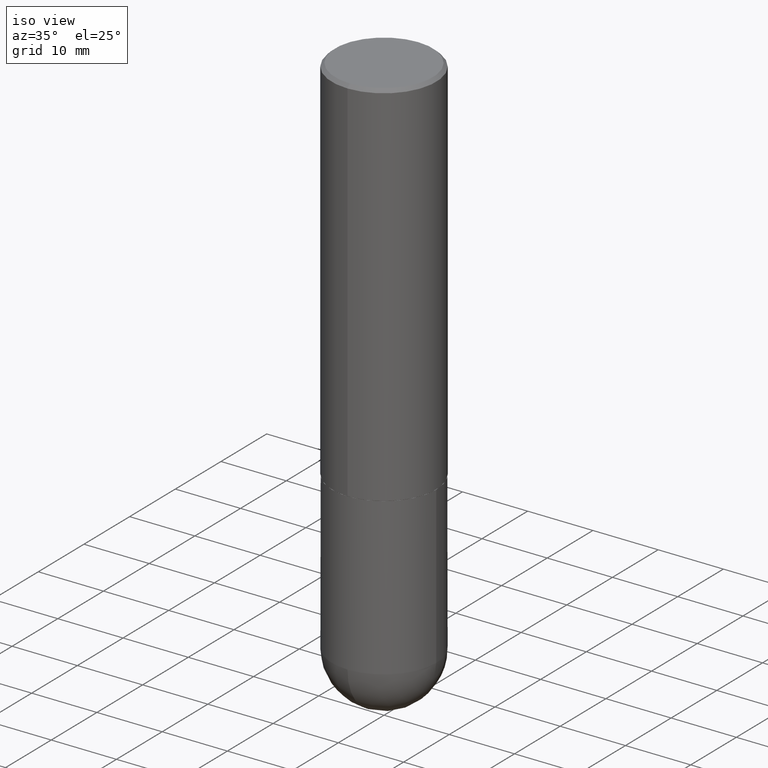
[diagram: clean part render]
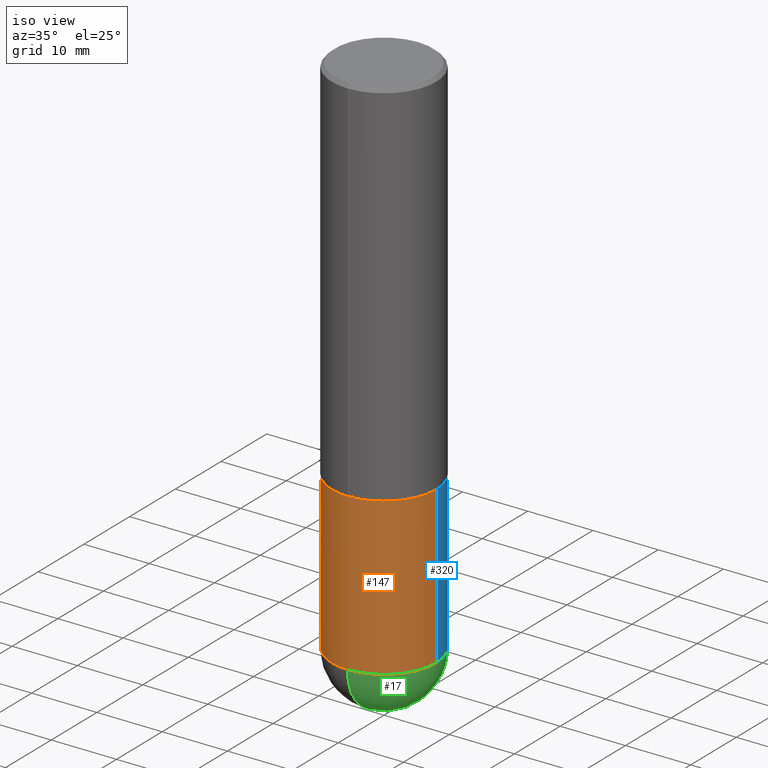
[diagram: same view with three faces highlighted in distinct colors, each labeled with its STEP entity id]
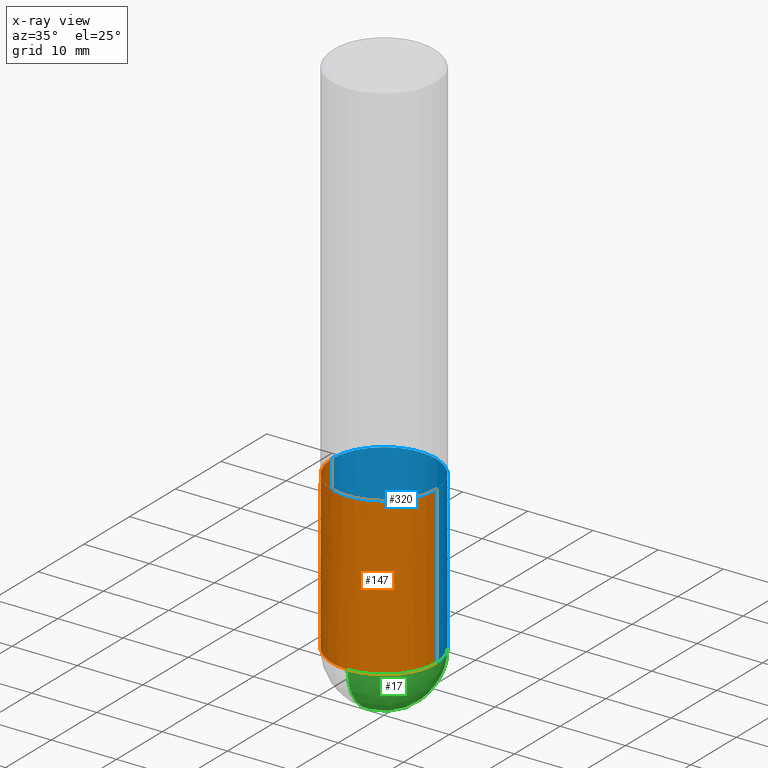
[diagram: x-ray of the same camera — body ghosted, the three highlighted faces saturated]
A machine part, iso view with three faces highlighted in distinct colors.
The next image is the same camera in x-ray (body ghosted, the three faces saturated) — at least one of them is partly hidden behind the body in this view.
Their STEP definitions:

[orange] entity #147 — the highlighted cylindrical surface (partial cylindrical patch) has radius 7.9997 mm, axis along (-0, 0, 1).
#1 = DIRECTION ( 'NONE',  ( -2.445468806185136877E-29, 3.491481338843145188E-15, 1.000000000000000000 ) ) ;
#21 = CARTESIAN_POINT ( 'NONE',  ( 7.798477749484091354E-29, -1.113415941550384898E-14, -3.188949999999999729 ) ) ;
#23 = VERTEX_POINT ( 'NONE', #142 ) ;
#34 = FACE_OUTER_BOUND ( 'NONE', #318, .T. ) ;
#42 = ORIENTED_EDGE ( 'NONE', *, *, #399, .T. ) ;
#58 = VERTEX_POINT ( 'NONE', #397 ) ;
#62 = DIRECTION ( 'NONE',  ( 1.000000000000000000, -6.982962677686263555E-15, 0.000000000000000000 ) ) ;
#66 = AXIS2_PLACEMENT_3D ( 'NONE', #21, #332, #270 ) ;
#70 = CARTESIAN_POINT ( 'NONE',  ( -0.3149500000000000077, 2.237854346276435590E-15, -1.549218606675782676E-29 ) ) ;
#71 = ORIENTED_EDGE ( 'NONE', *, *, #353, .F. ) ;
#75 = CIRCLE ( 'NONE', #309, 0.3149500000000000077 ) ;
#101 = DIRECTION ( 'NONE',  ( -2.445468806185136877E-29, 3.491481338843145188E-15, 1.000000000000000000 ) ) ;
#109 = DIRECTION ( 'NONE',  ( -2.445468806185136597E-29, 3.491481338843145583E-15, 1.000000000000000000 ) ) ;
#115 = EDGE_CURVE ( 'NONE', #345, #358, #250, .T. ) ;
#116 = CYLINDRICAL_SURFACE ( 'NONE', #294, 0.3149500000000000077 ) ;
#139 = CIRCLE ( 'NONE', #380, 0.3149500000000000077 ) ;
#141 = CARTESIAN_POINT ( 'NONE',  ( 0.3149500000000000077, -1.168398043933816632E-14, -3.188949999999999729 ) ) ;
#142 = CARTESIAN_POINT ( 'NONE',  ( -0.3149500000000000077, -7.246841997724440463E-15, -2.244099999999999540 ) ) ;
#143 = DIRECTION ( 'NONE',  ( -2.445468806185136597E-29, 3.491481338843145583E-15, 1.000000000000000000 ) ) ;
#147 = ADVANCED_FACE ( 'NONE', ( #34 ), #116, .T. ) ;
#148 = CARTESIAN_POINT ( 'NONE',  ( 0.000000000000000000, 0.000000000000000000, 0.000000000000000000 ) ) ;
#156 = LINE ( 'NONE', #70, #253 ) ;
#161 = CARTESIAN_POINT ( 'NONE',  ( 0.3149500000000000077, -1.003451736783519063E-14, -2.244099999999999540 ) ) ;
#164 = CARTESIAN_POINT ( 'NONE',  ( -0.3149500000000000077, -7.246841997724442041E-15, -3.188949999999999729 ) ) ;
#182 = EDGE_CURVE ( 'NONE', #331, #23, #156, .T. ) ;
#202 = ORIENTED_EDGE ( 'NONE', *, *, #182, .F. ) ;
#223 = VECTOR ( 'NONE', #1, 39.37007874015748143 ) ;
#244 = CIRCLE ( 'NONE', #66, 0.3149500000000000077 ) ;
#250 = LINE ( 'NONE', #348, #223 ) ;
#253 = VECTOR ( 'NONE', #101, 39.37007874015748143 ) ;
#259 = ORIENTED_EDGE ( 'NONE', *, *, #326, .T. ) ;
#270 = DIRECTION ( 'NONE',  ( 1.000000000000000000, -6.982962677686263555E-15, 0.000000000000000000 ) ) ;
#280 = ORIENTED_EDGE ( 'NONE', *, *, #115, .T. ) ;
#281 = DIRECTION ( 'NONE',  ( -2.445468806185136597E-29, 3.491481338843145583E-15, 1.000000000000000000 ) ) ;
#294 = AXIS2_PLACEMENT_3D ( 'NONE', #148, #143, #384 ) ;
#309 = AXIS2_PLACEMENT_3D ( 'NONE', #382, #281, #62 ) ;
#318 = EDGE_LOOP ( 'NONE', ( #202, #259, #42, #280, #71 ) ) ;
#325 = CARTESIAN_POINT ( 'NONE',  ( 5.487876547960064752E-29, -7.835233272497900762E-15, -2.244099999999999540 ) ) ;
#326 = EDGE_CURVE ( 'NONE', #331, #58, #244, .T. ) ;
#331 = VERTEX_POINT ( 'NONE', #164 ) ;
#332 = DIRECTION ( 'NONE',  ( -2.445468806185136597E-29, 3.491481338843145583E-15, 1.000000000000000000 ) ) ;
#345 = VERTEX_POINT ( 'NONE', #141 ) ;
#348 = CARTESIAN_POINT ( 'NONE',  ( 0.3149500000000000077, -2.199284095337289871E-15, 1.535751875536930130E-29 ) ) ;
#353 = EDGE_CURVE ( 'NONE', #23, #358, #139, .T. ) ;
#358 = VERTEX_POINT ( 'NONE', #161 ) ;
#359 = DIRECTION ( 'NONE',  ( 1.000000000000000000, -6.982962677686266711E-15, 0.000000000000000000 ) ) ;
#380 = AXIS2_PLACEMENT_3D ( 'NONE', #325, #109, #359 ) ;
#382 = CARTESIAN_POINT ( 'NONE',  ( 7.798477749484091354E-29, -1.113415941550384898E-14, -3.188949999999999729 ) ) ;
#384 = DIRECTION ( 'NONE',  ( 1.000000000000000000, -6.982962677686266711E-15, 4.876176775795936353E-29 ) ) ;
#397 = CARTESIAN_POINT ( 'NONE',  ( -2.237854346276359071E-15, -0.3149500000000114985, -3.188949999999998841 ) ) ;
#399 = EDGE_CURVE ( 'NONE', #58, #345, #75, .T. ) ;

[blue] entity #320 — the highlighted cylindrical surface (partial cylindrical patch) has radius 7.9997 mm, axis along (-0, 0, 1).
#1 = DIRECTION ( 'NONE',  ( -2.445468806185136877E-29, 3.491481338843145188E-15, 1.000000000000000000 ) ) ;
#11 = AXIS2_PLACEMENT_3D ( 'NONE', #77, #204, #334 ) ;
#13 = CYLINDRICAL_SURFACE ( 'NONE', #11, 0.3149500000000000077 ) ;
#23 = VERTEX_POINT ( 'NONE', #142 ) ;
#25 = CIRCLE ( 'NONE', #316, 0.3149500000000000077 ) ;
#32 = CARTESIAN_POINT ( 'NONE',  ( 7.798477749484091354E-29, -1.113415941550384898E-14, -3.188949999999999729 ) ) ;
#49 = CARTESIAN_POINT ( 'NONE',  ( 7.798477749484091354E-29, -1.113415941550384898E-14, -3.188949999999999729 ) ) ;
#54 = DIRECTION ( 'NONE',  ( 1.000000000000000000, -6.982962677686263555E-15, 0.000000000000000000 ) ) ;
#69 = ORIENTED_EDGE ( 'NONE', *, *, #310, .T. ) ;
#70 = CARTESIAN_POINT ( 'NONE',  ( -0.3149500000000000077, 2.237854346276435590E-15, -1.549218606675782676E-29 ) ) ;
#72 = EDGE_CURVE ( 'NONE', #358, #23, #25, .T. ) ;
#77 = CARTESIAN_POINT ( 'NONE',  ( 0.000000000000000000, 0.000000000000000000, 0.000000000000000000 ) ) ;
#101 = DIRECTION ( 'NONE',  ( -2.445468806185136877E-29, 3.491481338843145188E-15, 1.000000000000000000 ) ) ;
#103 = ORIENTED_EDGE ( 'NONE', *, *, #182, .T. ) ;
#115 = EDGE_CURVE ( 'NONE', #345, #358, #250, .T. ) ;
#141 = CARTESIAN_POINT ( 'NONE',  ( 0.3149500000000000077, -1.168398043933816632E-14, -3.188949999999999729 ) ) ;
#142 = CARTESIAN_POINT ( 'NONE',  ( -0.3149500000000000077, -7.246841997724440463E-15, -2.244099999999999540 ) ) ;
#145 = CIRCLE ( 'NONE', #372, 0.3149500000000000077 ) ;
#155 = DIRECTION ( 'NONE',  ( -2.445468806185136597E-29, 3.491481338843145583E-15, 1.000000000000000000 ) ) ;
#156 = LINE ( 'NONE', #70, #253 ) ;
#161 = CARTESIAN_POINT ( 'NONE',  ( 0.3149500000000000077, -1.003451736783519063E-14, -2.244099999999999540 ) ) ;
#162 = CARTESIAN_POINT ( 'NONE',  ( 5.487876547960064752E-29, -7.835233272497900762E-15, -2.244099999999999540 ) ) ;
#164 = CARTESIAN_POINT ( 'NONE',  ( -0.3149500000000000077, -7.246841997724442041E-15, -3.188949999999999729 ) ) ;
#182 = EDGE_CURVE ( 'NONE', #331, #23, #156, .T. ) ;
#188 = ORIENTED_EDGE ( 'NONE', *, *, #72, .F. ) ;
#198 = AXIS2_PLACEMENT_3D ( 'NONE', #49, #155, #54 ) ;
#199 = FACE_OUTER_BOUND ( 'NONE', #232, .T. ) ;
#204 = DIRECTION ( 'NONE',  ( -2.445468806185136597E-29, 3.491481338843145583E-15, 1.000000000000000000 ) ) ;
#223 = VECTOR ( 'NONE', #1, 39.37007874015748143 ) ;
#232 = EDGE_LOOP ( 'NONE', ( #69, #103, #188, #355, #387 ) ) ;
#239 = DIRECTION ( 'NONE',  ( 1.000000000000000000, -6.982962677686266711E-15, 0.000000000000000000 ) ) ;
#250 = LINE ( 'NONE', #348, #223 ) ;
#253 = VECTOR ( 'NONE', #101, 39.37007874015748143 ) ;
#299 = DIRECTION ( 'NONE',  ( -2.445468806185136597E-29, 3.491481338843145583E-15, 1.000000000000000000 ) ) ;
#301 = CARTESIAN_POINT ( 'NONE',  ( 2.199284095337366390E-15, 0.3149499999999886835, -3.188950000000001062 ) ) ;
#310 = EDGE_CURVE ( 'NONE', #394, #331, #145, .T. ) ;
#316 = AXIS2_PLACEMENT_3D ( 'NONE', #162, #299, #239 ) ;
#320 = ADVANCED_FACE ( 'NONE', ( #199 ), #13, .T. ) ;
#323 = DIRECTION ( 'NONE',  ( -2.445468806185136597E-29, 3.491481338843145583E-15, 1.000000000000000000 ) ) ;
#331 = VERTEX_POINT ( 'NONE', #164 ) ;
#334 = DIRECTION ( 'NONE',  ( 1.000000000000000000, -6.982962677686266711E-15, 4.876176775795936353E-29 ) ) ;
#337 = EDGE_CURVE ( 'NONE', #345, #394, #385, .T. ) ;
#345 = VERTEX_POINT ( 'NONE', #141 ) ;
#348 = CARTESIAN_POINT ( 'NONE',  ( 0.3149500000000000077, -2.199284095337289871E-15, 1.535751875536930130E-29 ) ) ;
#355 = ORIENTED_EDGE ( 'NONE', *, *, #115, .F. ) ;
#358 = VERTEX_POINT ( 'NONE', #161 ) ;
#361 = DIRECTION ( 'NONE',  ( 1.000000000000000000, -6.982962677686263555E-15, 0.000000000000000000 ) ) ;
#372 = AXIS2_PLACEMENT_3D ( 'NONE', #32, #323, #361 ) ;
#385 = CIRCLE ( 'NONE', #198, 0.3149500000000000077 ) ;
#387 = ORIENTED_EDGE ( 'NONE', *, *, #337, .T. ) ;
#394 = VERTEX_POINT ( 'NONE', #301 ) ;

[green] entity #17 — the highlighted spherical surface has radius 7.9997 mm.
#6 = ORIENTED_EDGE ( 'NONE', *, *, #67, .T. ) ;
#15 = EDGE_LOOP ( 'NONE', ( #246, #6, #106, #256 ) ) ;
#17 = ADVANCED_FACE ( 'NONE', ( #276 ), #205, .T. ) ;
#36 = CARTESIAN_POINT ( 'NONE',  ( 7.467357971570205107E-29, -1.160834178364390085E-14, -3.188949999999999729 ) ) ;
#49 = CARTESIAN_POINT ( 'NONE',  ( 7.798477749484091354E-29, -1.113415941550384898E-14, -3.188949999999999729 ) ) ;
#54 = DIRECTION ( 'NONE',  ( 1.000000000000000000, -6.982962677686263555E-15, 0.000000000000000000 ) ) ;
#58 = VERTEX_POINT ( 'NONE', #397 ) ;
#62 = DIRECTION ( 'NONE',  ( 1.000000000000000000, -6.982962677686263555E-15, 0.000000000000000000 ) ) ;
#67 = EDGE_CURVE ( 'NONE', #206, #394, #158, .T. ) ;
#75 = CIRCLE ( 'NONE', #309, 0.3149500000000000077 ) ;
#87 = DIRECTION ( 'NONE',  ( 1.000000000000000000, -6.982962677686265922E-15, 4.883557194083112340E-29 ) ) ;
#106 = ORIENTED_EDGE ( 'NONE', *, *, #337, .F. ) ;
#118 = DIRECTION ( 'NONE',  ( 6.982962677686264344E-15, 1.000000000000000000, 0.000000000000000000 ) ) ;
#141 = CARTESIAN_POINT ( 'NONE',  ( 0.3149500000000000077, -1.168398043933816632E-14, -3.188949999999999729 ) ) ;
#155 = DIRECTION ( 'NONE',  ( -2.445468806185136597E-29, 3.491481338843145583E-15, 1.000000000000000000 ) ) ;
#158 = CIRCLE ( 'NONE', #371, 0.3149500000000001743 ) ;
#185 = CIRCLE ( 'NONE', #303, 0.3149500000000001743 ) ;
#198 = AXIS2_PLACEMENT_3D ( 'NONE', #49, #155, #54 ) ;
#205 = SPHERICAL_SURFACE ( 'NONE', #312, 0.3149500000000001743 ) ;
#206 = VERTEX_POINT ( 'NONE', #356 ) ;
#210 = DIRECTION ( 'NONE',  ( 6.982962677686265133E-15, 1.000000000000000000, -3.469564049740291586E-15 ) ) ;
#246 = ORIENTED_EDGE ( 'NONE', *, *, #275, .F. ) ;
#256 = ORIENTED_EDGE ( 'NONE', *, *, #399, .F. ) ;
#257 = DIRECTION ( 'NONE',  ( -7.105427357600999492E-15, -1.000000000000000000, 0.000000000000000000 ) ) ;
#267 = DIRECTION ( 'NONE',  ( -1.000000000000000000, 6.982962677686265133E-15, -4.883557194083112901E-29 ) ) ;
#275 = EDGE_CURVE ( 'NONE', #206, #58, #185, .T. ) ;
#276 = FACE_OUTER_BOUND ( 'NONE', #15, .T. ) ;
#281 = DIRECTION ( 'NONE',  ( -2.445468806185136597E-29, 3.491481338843145583E-15, 1.000000000000000000 ) ) ;
#285 = DIRECTION ( 'NONE',  ( -1.000000000000000000, 7.105427357601001070E-15, -4.926315508542082329E-29 ) ) ;
#301 = CARTESIAN_POINT ( 'NONE',  ( 2.199284095337366390E-15, 0.3149499999999886835, -3.188950000000001062 ) ) ;
#303 = AXIS2_PLACEMENT_3D ( 'NONE', #36, #285, #257 ) ;
#309 = AXIS2_PLACEMENT_3D ( 'NONE', #382, #281, #62 ) ;
#312 = AXIS2_PLACEMENT_3D ( 'NONE', #365, #267, #210 ) ;
#337 = EDGE_CURVE ( 'NONE', #345, #394, #385, .T. ) ;
#345 = VERTEX_POINT ( 'NONE', #141 ) ;
#356 = CARTESIAN_POINT ( 'NONE',  ( 8.251025103217066053E-29, -1.268869870584297589E-14, -3.503899999999999793 ) ) ;
#365 = CARTESIAN_POINT ( 'NONE',  ( 7.467357971570205107E-29, -1.160834178364390085E-14, -3.188949999999999729 ) ) ;
#371 = AXIS2_PLACEMENT_3D ( 'NONE', #373, #87, #118 ) ;
#373 = CARTESIAN_POINT ( 'NONE',  ( 7.467357971570205107E-29, -1.160834178364390085E-14, -3.188949999999999729 ) ) ;
#382 = CARTESIAN_POINT ( 'NONE',  ( 7.798477749484091354E-29, -1.113415941550384898E-14, -3.188949999999999729 ) ) ;
#385 = CIRCLE ( 'NONE', #198, 0.3149500000000000077 ) ;
#394 = VERTEX_POINT ( 'NONE', #301 ) ;
#397 = CARTESIAN_POINT ( 'NONE',  ( -2.237854346276359071E-15, -0.3149500000000114985, -3.188949999999998841 ) ) ;
#399 = EDGE_CURVE ( 'NONE', #58, #345, #75, .T. ) ;